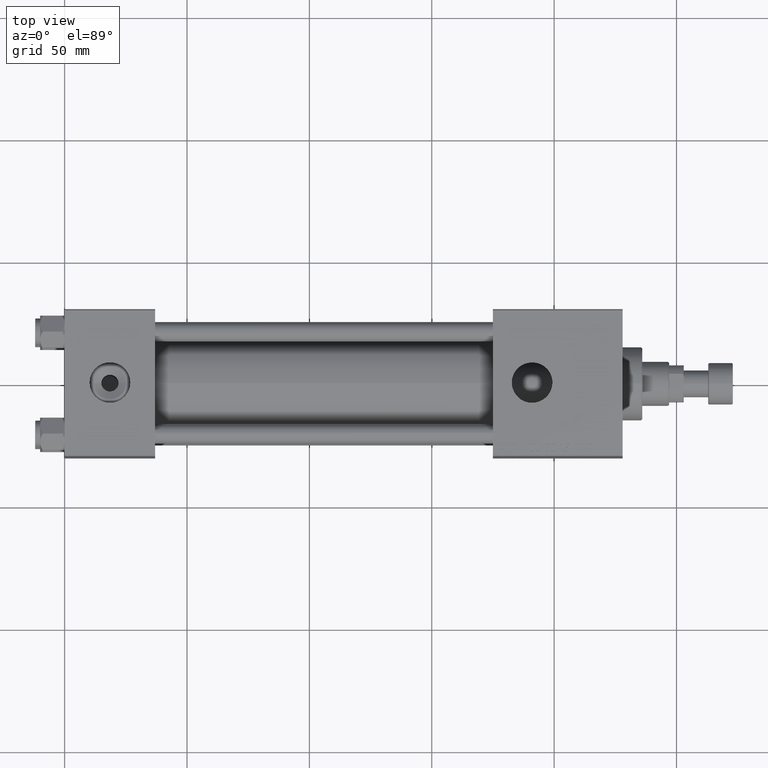
[diagram: clean part render]
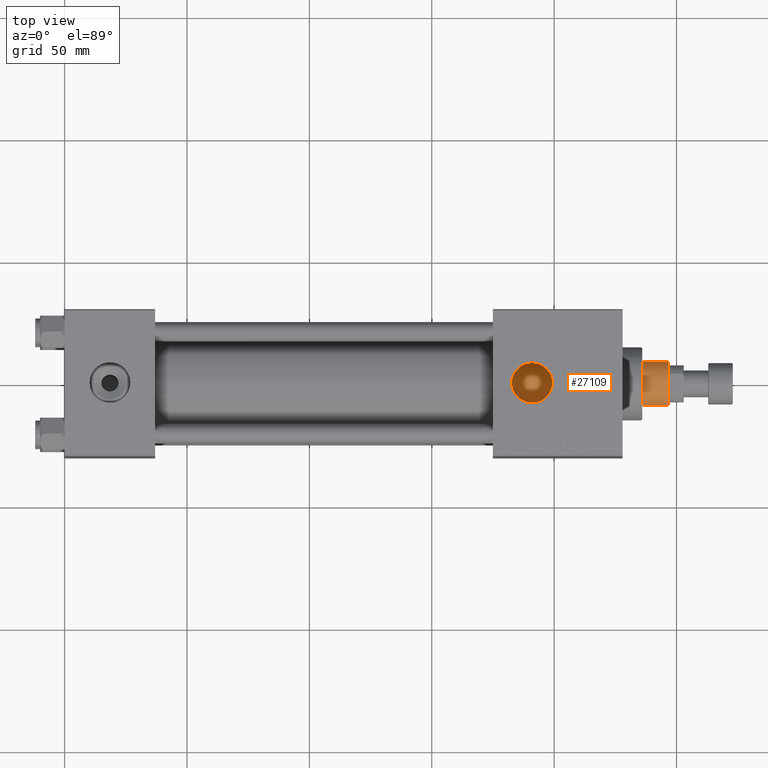
[diagram: same view with one face highlighted and labeled with its STEP entity id]
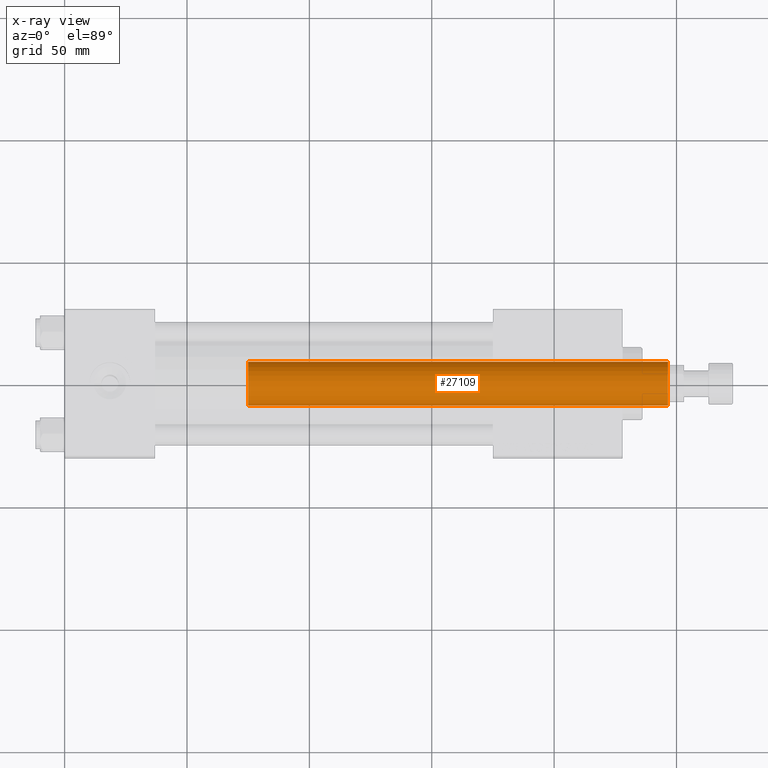
[diagram: x-ray of the same camera — body ghosted, the highlighted face saturated]
A machine part, top view. The second image highlights one B-rep face of the part: STEP entity #27109.
The next image is the same camera in x-ray: the body ghosted, the highlighted face saturated — about 0% of this face is hidden behind the body in this view.
In plain terms, the highlighted cylindrical surface (edge-blend (fillet) strip) has radius 9 mm, axis along (-1, 0, 0).
Its self-contained STEP definition (entity closure, byte-faithful):
#1560 = ORIENTED_EDGE ( 'NONE', *, *, #42340, .T. ) ;
#2959 = VERTEX_POINT ( 'NONE', #35211 ) ;
#5432 = DIRECTION ( 'NONE',  ( 0.000000000000000000, 0.000000000000000000, -1.000000000000000000 ) ) ;
#6526 = CARTESIAN_POINT ( 'NONE',  ( 9.000000000000000000, 1.102182119232617714E-15, 210.0000000000000000 ) ) ;
#7002 = DIRECTION ( 'NONE',  ( 0.000000000000000000, 0.000000000000000000, 1.000000000000000000 ) ) ;
#9080 = VECTOR ( 'NONE', #22815, 1000.000000000000000 ) ;
#9285 = CIRCLE ( 'NONE', #51063, 9.000000000000000000 ) ;
#9997 = DIRECTION ( 'NONE',  ( -0.000000000000000000, -0.000000000000000000, -1.000000000000000000 ) ) ;
#10527 = LINE ( 'NONE', #6526, #9080 ) ;
#11156 = CARTESIAN_POINT ( 'NONE',  ( 9.000000000000000000, 1.102182119232617714E-15, 38.00000000000000000 ) ) ;
#11847 = ORIENTED_EDGE ( 'NONE', *, *, #42789, .T. ) ;
#12220 = CARTESIAN_POINT ( 'NONE',  ( 9.000000000000000000, 1.102182119232617714E-15, 209.5000000000000000 ) ) ;
#13247 = ORIENTED_EDGE ( 'NONE', *, *, #27113, .F. ) ;
#13822 = VERTEX_POINT ( 'NONE', #17552 ) ;
#17438 = CARTESIAN_POINT ( 'NONE',  ( 0.000000000000000000, 0.000000000000000000, 209.5000000000000000 ) ) ;
#17552 = CARTESIAN_POINT ( 'NONE',  ( -9.000000000000000000, 0.000000000000000000, 209.5000000000000000 ) ) ;
#18956 = EDGE_CURVE ( 'NONE', #40983, #13822, #44649, .T. ) ;
#22291 = DIRECTION ( 'NONE',  ( -1.000000000000000000, 0.000000000000000000, 0.000000000000000000 ) ) ;
#22739 = AXIS2_PLACEMENT_3D ( 'NONE', #34568, #9997, #22291 ) ;
#22815 = DIRECTION ( 'NONE',  ( -0.000000000000000000, -0.000000000000000000, -1.000000000000000000 ) ) ;
#23950 = DIRECTION ( 'NONE',  ( -0.000000000000000000, -0.000000000000000000, -1.000000000000000000 ) ) ;
#25895 = AXIS2_PLACEMENT_3D ( 'NONE', #17438, #5432, #42022 ) ;
#26024 = FACE_OUTER_BOUND ( 'NONE', #42303, .T. ) ;
#27109 = ADVANCED_FACE ( 'NONE', ( #26024 ), #42318, .T. ) ;
#27113 = EDGE_CURVE ( 'NONE', #40983, #29086, #10527, .T. ) ;
#29086 = VERTEX_POINT ( 'NONE', #11156 ) ;
#30513 = CARTESIAN_POINT ( 'NONE',  ( 0.000000000000000000, 0.000000000000000000, 38.00000000000000000 ) ) ;
#31303 = DIRECTION ( 'NONE',  ( 1.000000000000000000, 0.000000000000000000, 0.000000000000000000 ) ) ;
#34568 = CARTESIAN_POINT ( 'NONE',  ( 0.000000000000000000, 0.000000000000000000, 210.0000000000000000 ) ) ;
#35211 = CARTESIAN_POINT ( 'NONE',  ( -9.000000000000000000, 0.000000000000000000, 38.00000000000000000 ) ) ;
#35666 = VECTOR ( 'NONE', #23950, 1000.000000000000000 ) ;
#36492 = LINE ( 'NONE', #44758, #35666 ) ;
#40983 = VERTEX_POINT ( 'NONE', #12220 ) ;
#42022 = DIRECTION ( 'NONE',  ( 1.000000000000000000, 0.000000000000000000, 0.000000000000000000 ) ) ;
#42303 = EDGE_LOOP ( 'NONE', ( #13247, #48006, #1560, #11847 ) ) ;
#42318 = CYLINDRICAL_SURFACE ( 'NONE', #22739, 9.000000000000000000 ) ;
#42340 = EDGE_CURVE ( 'NONE', #13822, #2959, #36492, .T. ) ;
#42789 = EDGE_CURVE ( 'NONE', #2959, #29086, #9285, .T. ) ;
#44649 = CIRCLE ( 'NONE', #25895, 9.000000000000000000 ) ;
#44758 = CARTESIAN_POINT ( 'NONE',  ( -9.000000000000000000, 0.000000000000000000, 210.0000000000000000 ) ) ;
#48006 = ORIENTED_EDGE ( 'NONE', *, *, #18956, .T. ) ;
#51063 = AXIS2_PLACEMENT_3D ( 'NONE', #30513, #7002, #31303 ) ;